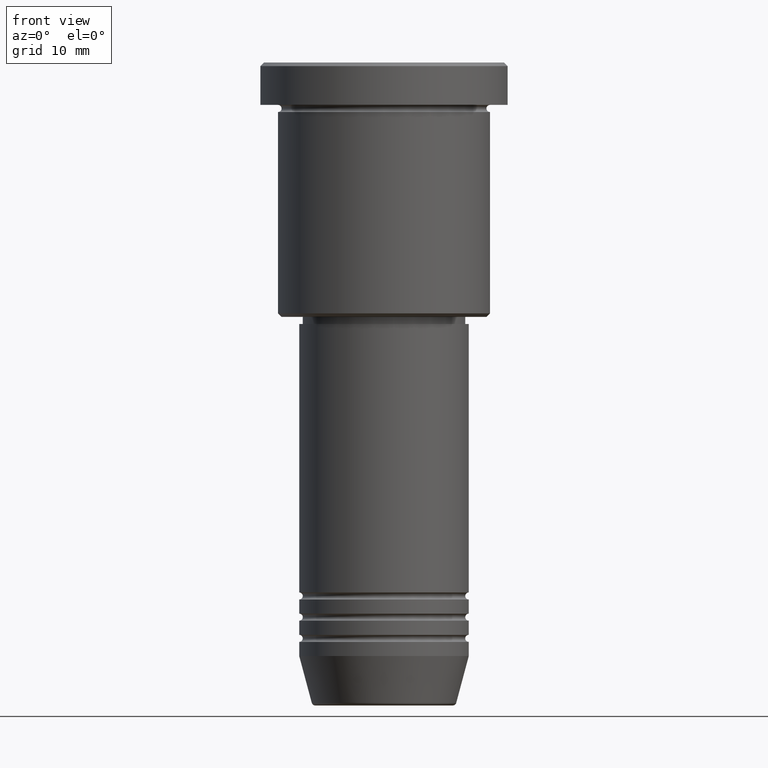
[diagram: clean part render]
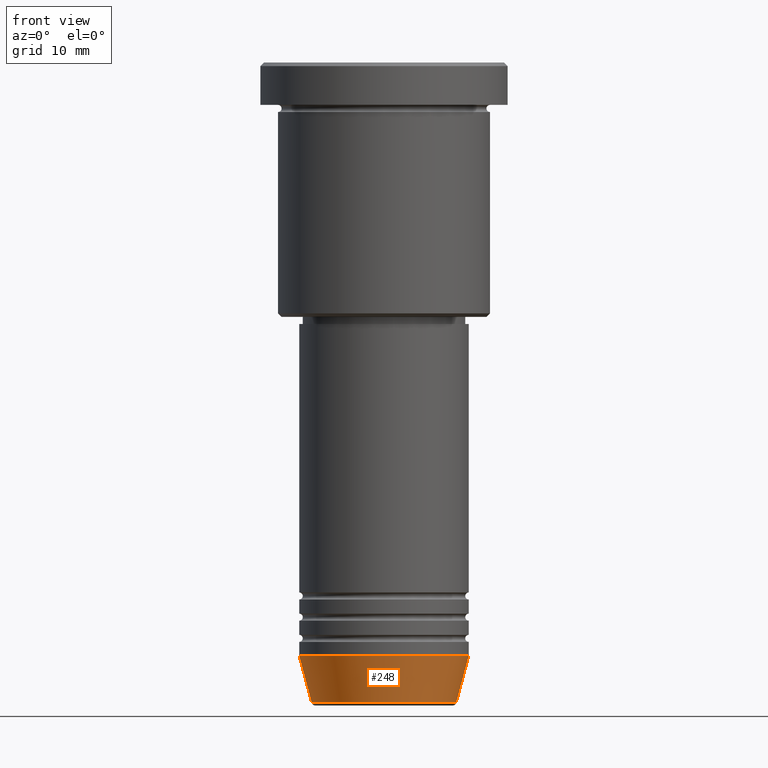
[diagram: same view with one face highlighted and labeled with its STEP entity id]
A machine part, front view. The second image highlights one B-rep face of the part: STEP entity #248.
In plain terms, the highlighted conical surface has half-angle 15 deg.
Its self-contained STEP definition (entity closure, byte-faithful):
#57 = ORIENTED_EDGE ( 'NONE', *, *, #137, .T. ) ;
#130 = CARTESIAN_POINT ( 'NONE',  ( 0.000000000000000000, 0.000000000000000000, -83.99999999999998579 ) ) ;
#137 = EDGE_CURVE ( 'NONE', #579, #764, #466, .T. ) ;
#151 = CONICAL_SURFACE ( 'NONE', #1116, 12.00000000000000000, 0.2617993877991500740 ) ;
#211 = CARTESIAN_POINT ( 'NONE',  ( 0.000000000000000000, 0.000000000000000000, -90.62940952255125637 ) ) ;
#248 = ADVANCED_FACE ( 'NONE', ( #404 ), #151, .T. ) ;
#290 = CARTESIAN_POINT ( 'NONE',  ( -10.22365507213718949, 1.360806402472382547E-15, -90.62940952255125637 ) ) ;
#309 = DIRECTION ( 'NONE',  ( 1.000000000000000000, 0.000000000000000000, 0.000000000000000000 ) ) ;
#392 = VECTOR ( 'NONE', #1080, 1000.000000000000000 ) ;
#404 = FACE_OUTER_BOUND ( 'NONE', #775, .T. ) ;
#457 = ORIENTED_EDGE ( 'NONE', *, *, #553, .F. ) ;
#466 = CIRCLE ( 'NONE', #687, 10.22365507213718949 ) ;
#495 = CARTESIAN_POINT ( 'NONE',  ( 0.000000000000000000, 0.000000000000000000, -83.99999999999998579 ) ) ;
#527 = CARTESIAN_POINT ( 'NONE',  ( 12.00000000000000000, 0.000000000000000000, -83.99999999999998579 ) ) ;
#553 = EDGE_CURVE ( 'NONE', #895, #897, #690, .T. ) ;
#566 = DIRECTION ( 'NONE',  ( -0.000000000000000000, -0.000000000000000000, 1.000000000000000000 ) ) ;
#568 = AXIS2_PLACEMENT_3D ( 'NONE', #495, #855, #1053 ) ;
#579 = VERTEX_POINT ( 'NONE', #290 ) ;
#581 = ORIENTED_EDGE ( 'NONE', *, *, #973, .F. ) ;
#605 = CARTESIAN_POINT ( 'NONE',  ( 10.22365507213718949, 0.000000000000000000, -90.62940952255125637 ) ) ;
#687 = AXIS2_PLACEMENT_3D ( 'NONE', #211, #566, #922 ) ;
#690 = CIRCLE ( 'NONE', #568, 12.00000000000000000 ) ;
#720 = CARTESIAN_POINT ( 'NONE',  ( -12.00000000000000000, 1.469576158976823947E-15, -83.99999999999998579 ) ) ;
#727 = EDGE_CURVE ( 'NONE', #764, #897, #803, .T. ) ;
#764 = VERTEX_POINT ( 'NONE', #605 ) ;
#775 = EDGE_LOOP ( 'NONE', ( #581, #57, #1139, #457 ) ) ;
#803 = LINE ( 'NONE', #527, #921 ) ;
#855 = DIRECTION ( 'NONE',  ( -0.000000000000000000, -0.000000000000000000, 1.000000000000000000 ) ) ;
#895 = VERTEX_POINT ( 'NONE', #1177 ) ;
#897 = VERTEX_POINT ( 'NONE', #911 ) ;
#911 = CARTESIAN_POINT ( 'NONE',  ( 12.00000000000000000, 0.000000000000000000, -83.99999999999998579 ) ) ;
#921 = VECTOR ( 'NONE', #974, 1000.000000000000000 ) ;
#922 = DIRECTION ( 'NONE',  ( 1.000000000000000000, 0.000000000000000000, 0.000000000000000000 ) ) ;
#973 = EDGE_CURVE ( 'NONE', #579, #895, #1089, .T. ) ;
#974 = DIRECTION ( 'NONE',  ( 0.2588190451025213501, 0.000000000000000000, 0.9659258262890680902 ) ) ;
#1053 = DIRECTION ( 'NONE',  ( 1.000000000000000000, 0.000000000000000000, 0.000000000000000000 ) ) ;
#1080 = DIRECTION ( 'NONE',  ( -0.2588190451025213501, 3.169619151431772337E-17, 0.9659258262890680902 ) ) ;
#1089 = LINE ( 'NONE', #720, #392 ) ;
#1116 = AXIS2_PLACEMENT_3D ( 'NONE', #130, #1126, #309 ) ;
#1126 = DIRECTION ( 'NONE',  ( -0.000000000000000000, -0.000000000000000000, 1.000000000000000000 ) ) ;
#1139 = ORIENTED_EDGE ( 'NONE', *, *, #727, .T. ) ;
#1177 = CARTESIAN_POINT ( 'NONE',  ( -12.00000000000000000, 1.469576158976823947E-15, -83.99999999999998579 ) ) ;